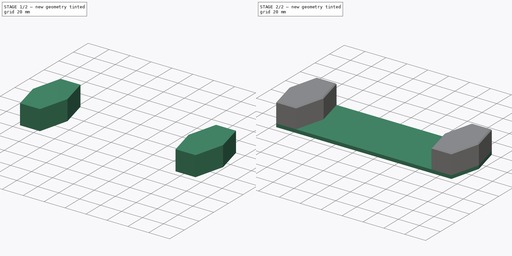
[diagram: build sequence overview — one tinted view per stage of 2, left to right]
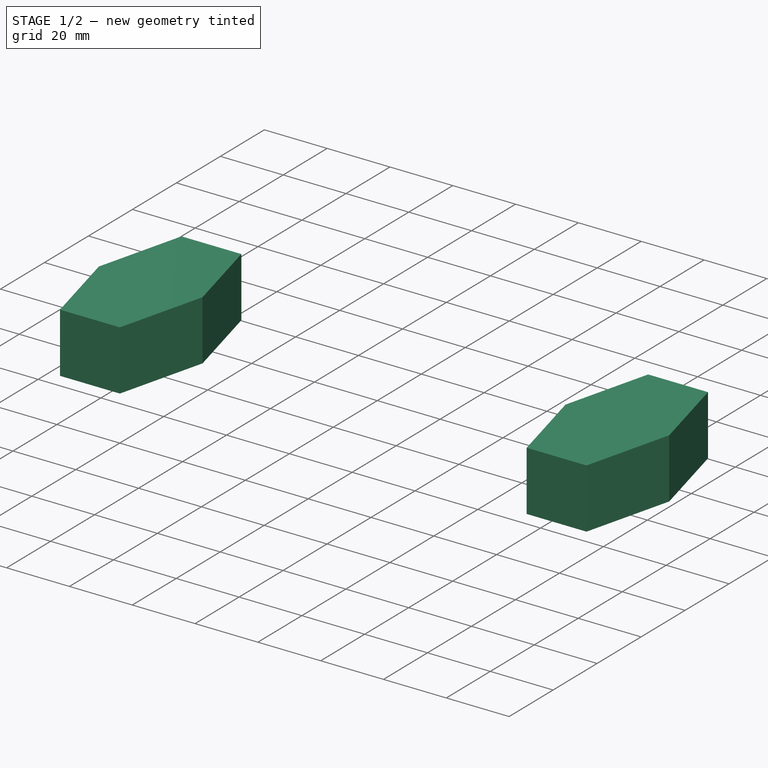
[diagram: stage 1 of 2 — iso view after this stage's code; geometry added in this stage tinted green]
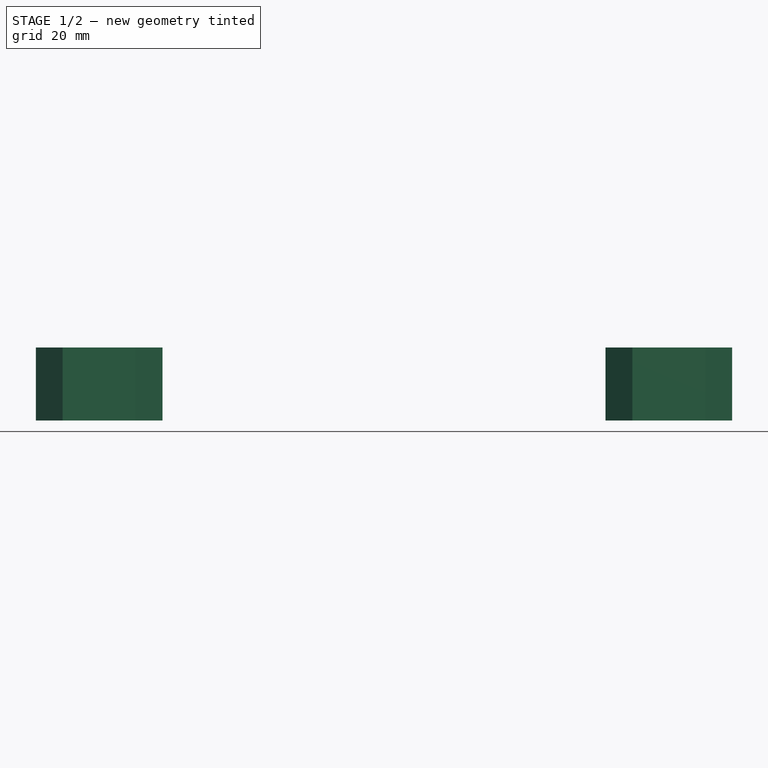
[diagram: stage 1 of 2 — front view after this stage's code; geometry added in this stage tinted green]
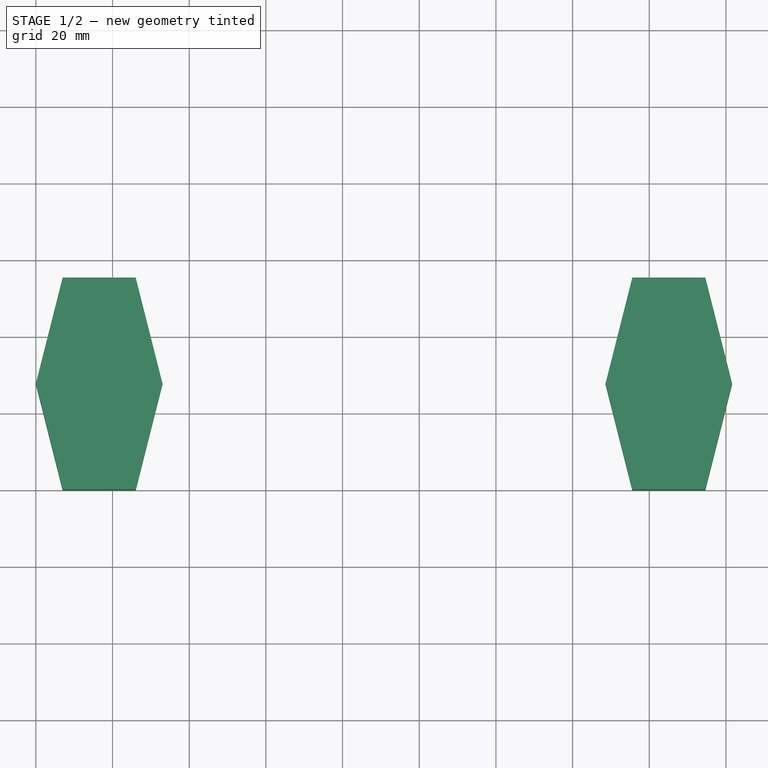
[diagram: stage 1 of 2 — top view after this stage's code; geometry added in this stage tinted green]
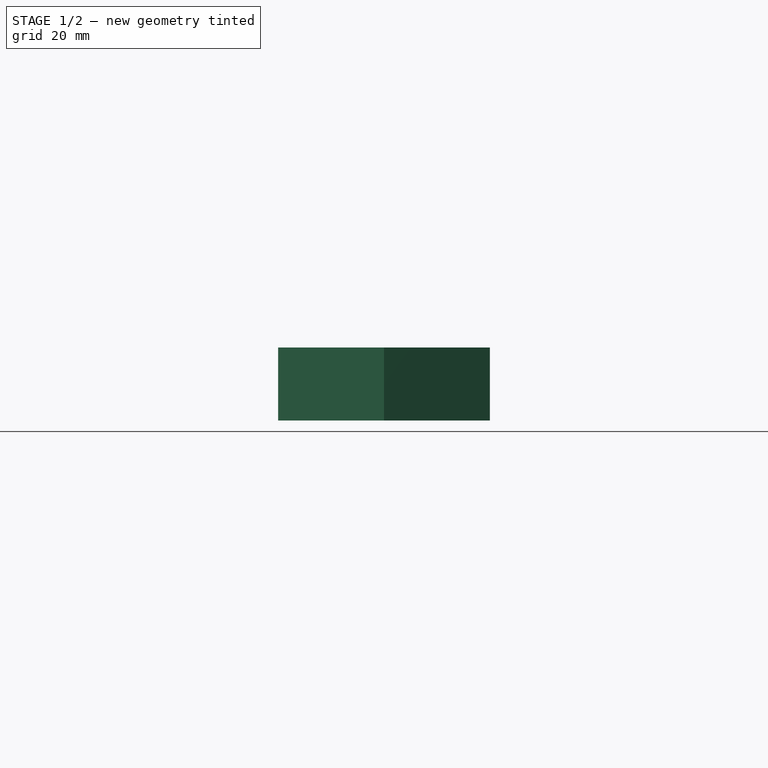
[diagram: stage 1 of 2 — right view after this stage's code; geometry added in this stage tinted green]
FCSTD DOCUMENT  (FreeCAD 0.20R29177 (Git))
Label: Xpad_Bottom
License: All rights reserved
LicenseURL: http://en.wikipedia.org/wiki/All_rights_reserved
objects: Sketcher::SketchObject×3, Part::Extrusion×2, App::Part×1, Part::Fuse×1, Part::Chamfer×1
note: 7 computed .brp shape members not serialized (recipe doc carries the construction recipe); baked Part::Feature solids carry a one-line shape summary decoded from their .brp

FEATURE [App::Part] Part
  Origin = -> Origin
FEATURE [Sketcher::SketchObject] Sketch
  FullyConstrained = true
  sketch-geometry (8):
    g0: LineSegment StartX=6.985 StartY=0 StartZ=0 EndX=174.625 EndY=0 EndZ=0
    g1: LineSegment StartX=174.625 StartY=0 StartZ=0 EndX=181.61 EndY=27.6225 EndZ=0
    g2: LineSegment StartX=181.61 StartY=27.6225 StartZ=0 EndX=174.625 EndY=55.245 EndZ=0
    g3: LineSegment StartX=174.625 StartY=55.245 StartZ=0 EndX=6.985 EndY=55.245 EndZ=0
    g4: LineSegment StartX=6.985 StartY=55.245 StartZ=0 EndX=0 EndY=27.6225 EndZ=0
    g5: LineSegment StartX=0 StartY=27.6225 StartZ=0 EndX=6.985 EndY=0 EndZ=0
    g6: LineSegment StartX=6.985 StartY=55.245 StartZ=0 EndX=6.985 EndY=27.6225 EndZ=0
    g7: LineSegment StartX=6.985 StartY=27.6225 StartZ=0 EndX=6.985 EndY=0 EndZ=0
  constraints (24):
    c: Horizontal(g0)
    c: Coincident(g1,g0)
    c: Coincident(g2,g1)
    c: Horizontal(g3)
    c: Coincident(g4,g3)
    c: Coincident(g5,g4)
    c: Coincident(g5,g0)
    c: Horizontal(g4,g1)
    c: Coincident(g3,g2)
    c: DistanceX(g4,g3) = 6.985
    c: DistanceY(g0,g3) = 55.245
    c: Equal(g2,g4)
    c: Equal(g1,g5)
    c: Coincident(g7,g6)
    c: PointOnObject(g7,g0)
    c: Equal(g7,g6)
    c: Vertical(g6)
    c: Vertical(g7)
    c: Horizontal(g4,g6)
    c: Vertical(g4,g-1)
    c: Horizontal(g0,g-1)
    c: Equal(g5,g4)
    c: Coincident(g6,g3)
    c: DistanceX(g4,g1) = 181.61
FEATURE [Part::Extrusion] Extrude
  Base = -> Sketch
  Dir = (0,0,1)
  DirMode = 2
  FaceMakerClass = Part::FaceMakerBullseye
  LengthFwd = 3.17
  LengthRev = 0
  Solid = true
  Symmetric = false
FEATURE [Sketcher::SketchObject] Sketch001
  ExternalGeometry = -> [Sketch]
  FullyConstrained = true
  MapMode = 5
  Placement = pos=(0,0,3.17) rot=(0,0,1;0rad)
  Support = -> [Extrude]
  sketch-geometry (14):
    g0: LineSegment StartX=6.985 StartY=55.245 StartZ=0 EndX=0 EndY=27.6225 EndZ=0
    g1: LineSegment StartX=0 StartY=27.6225 StartZ=0 EndX=6.985 EndY=0 EndZ=0
    g2: LineSegment StartX=6.985 StartY=55.245 StartZ=0 EndX=26.035 EndY=55.245 EndZ=0
    g3: LineSegment StartX=26.035 StartY=55.245 StartZ=0 EndX=33.02 EndY=27.6225 EndZ=0
    g4: LineSegment StartX=33.02 StartY=27.6225 StartZ=0 EndX=26.035 EndY=0 EndZ=0
    g5: LineSegment StartX=26.035 StartY=0 StartZ=0 EndX=6.985 EndY=0 EndZ=0
    g6: LineSegment StartX=174.625 StartY=55.245 StartZ=0 EndX=155.575 EndY=55.245 EndZ=0
    g7: LineSegment StartX=155.575 StartY=55.245 StartZ=0 EndX=148.59 EndY=27.6225 EndZ=0
    g8: LineSegment StartX=148.59 StartY=27.6225 StartZ=0 EndX=155.575 EndY=0 EndZ=0
    g9: LineSegment StartX=155.575 StartY=0 StartZ=0 EndX=174.625 EndY=0 EndZ=0
    g10: LineSegment StartX=174.625 StartY=0 StartZ=0 EndX=181.61 EndY=27.6225 EndZ=0
    g11: LineSegment StartX=181.61 StartY=27.6225 StartZ=0 EndX=174.625 EndY=55.245 EndZ=0
    g12: LineSegment StartX=26.035 StartY=55.245 StartZ=0 EndX=26.035 EndY=27.6225 EndZ=0
    g13: LineSegment StartX=26.035 StartY=27.6225 StartZ=0 EndX=26.035 EndY=0 EndZ=0
  constraints (38):
    c: Coincident(g1,g0)
    c: Coincident(g2,g0)
    c: Horizontal(g2)
    c: Coincident(g3,g2)
    c: Coincident(g4,g3)
    c: Coincident(g5,g4)
    c: Coincident(g5,g1)
    c: Coincident(g7,g6)
    c: Coincident(g8,g7)
    c: Coincident(g9,g8)
    c: Coincident(g10,g9)
    c: Horizontal(g6)
    c: Horizontal(g9)
    c: Horizontal(g5)
    c: Equal(g5,g2)
    c: Equal(g6,g9)
    c: Equal(g2,g6)
    c: Vertical(g12)
    c: Coincident(g13,g12)
    c: Vertical(g13)
    c: Coincident(g2,g12)
    c: Coincident(g4,g13)
    c: Coincident(g6,g11)
    c: Equal(g12,g13)
    c: Coincident(g11,g10)
    c: Horizontal(g7,g10)
    c: Horizontal(g0,g3)
    c: Horizontal(g12,g3)
    c: Equal(g3,g0)
    c: Equal(g3,g7)
    c: Equal(g11,g7)
    c: Horizontal(g4,g8)
    c: Coincident(g10,g-6)
    c: Coincident(g-3,g0)
    c: Coincident(g-5,g1)
    c: Horizontal(g2,g6)
    c: Equal(g8,g7)
    c: Distance(g0,g2) = 19.05
FEATURE [Part::Extrusion] Extrude001
  Base = -> Sketch001
  Dir = (0,0,1)
  DirMode = 2
  FaceMakerClass = Part::FaceMakerBullseye
  LengthFwd = 19.05
  LengthRev = 0
  Solid = true
  Symmetric = false
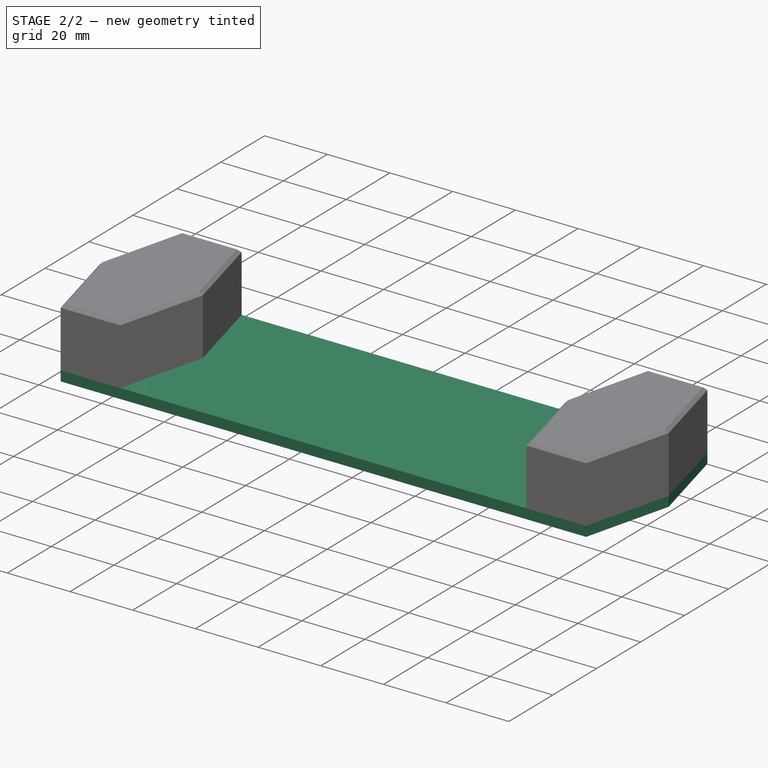
[diagram: stage 2 of 2 — iso view after this stage's code; geometry added in this stage tinted green]
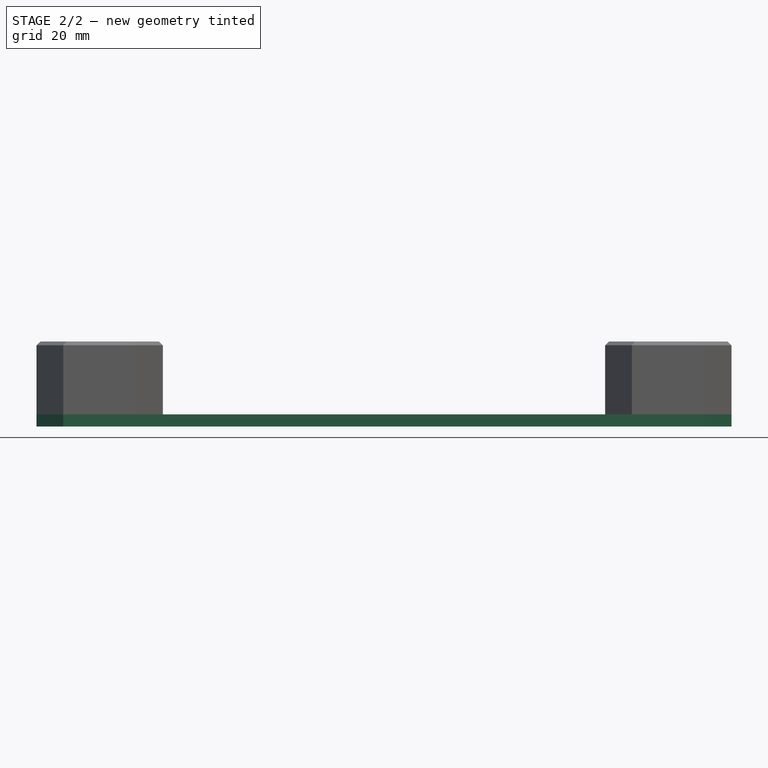
[diagram: stage 2 of 2 — front view after this stage's code; geometry added in this stage tinted green]
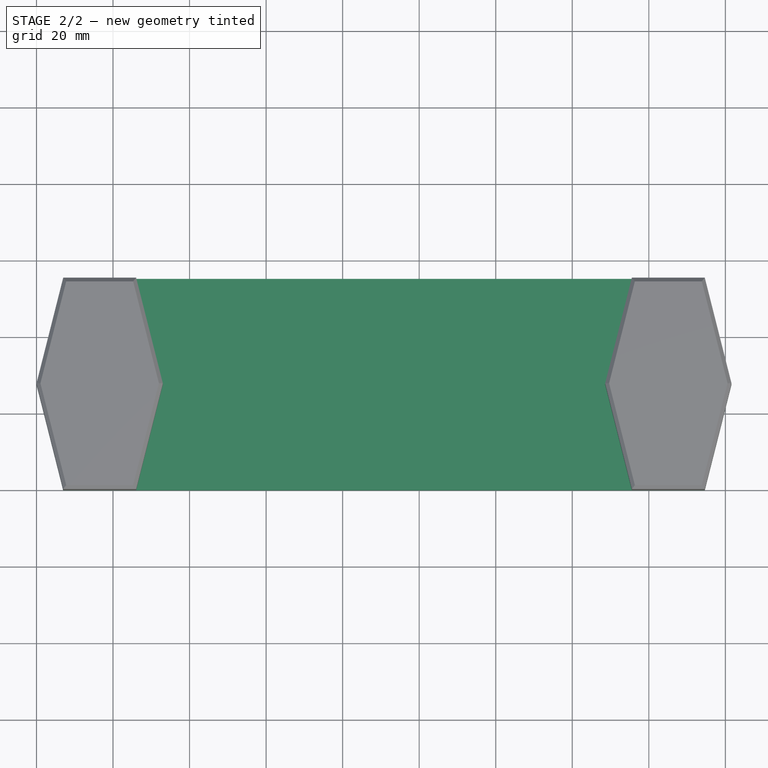
[diagram: stage 2 of 2 — top view after this stage's code; geometry added in this stage tinted green]
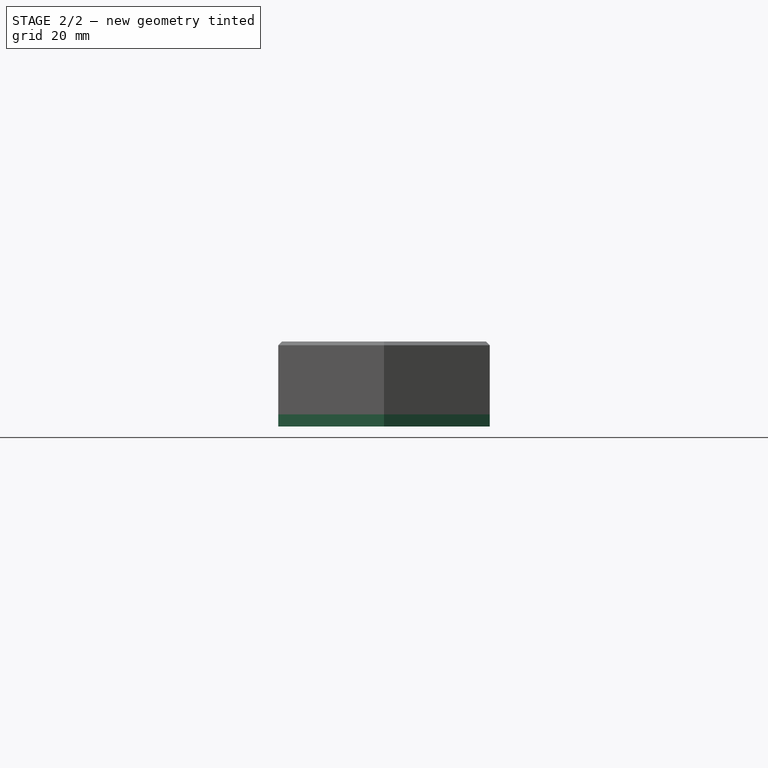
[diagram: stage 2 of 2 — right view after this stage's code; geometry added in this stage tinted green]
FEATURE [Part::Fuse] Fusion
  Base = -> Extrude
  Tool = -> Extrude001
FEATURE [Part::Chamfer] Chamfer
  Base = -> Fusion
  Edges = 12 edges r=1: [Edge18,Edge26,Edge30,Edge34,Edge38,Edge39,Edge40,Edge41,Edge45,Edge46,Edge47,Edge48]
FEATURE [Sketcher::SketchObject] Sketch002
  ExternalGeometry = -> [Sketch]
  FullyConstrained = false
  sketch-geometry (3):
    g0: Circle CenterX=40.132 CenterY=27.6225 CenterZ=0 NormalX=0 NormalY=0 NormalZ=1 AngleXU=0 Radius=1.27
    g1: Circle CenterX=147.32 CenterY=27.6225 CenterZ=0 NormalX=0 NormalY=0 NormalZ=1 AngleXU=0 Radius=1.27
    g2: Circle CenterX=78.8343 CenterY=20.9972 CenterZ=0 NormalX=0 NormalY=0 NormalZ=1 AngleXU=0 Radius=1.27
  constraints (7):
    c: Equal(g0,g2)
    c: Equal(g1,g2)
    c: Diameter(g2) = 2.54
    c: Horizontal(g-3,g0)
    c: Horizontal(g0,g1)
    c: Distance(g0,g1) = 107.188
    c: Distance(g-3,g0) = 40.132
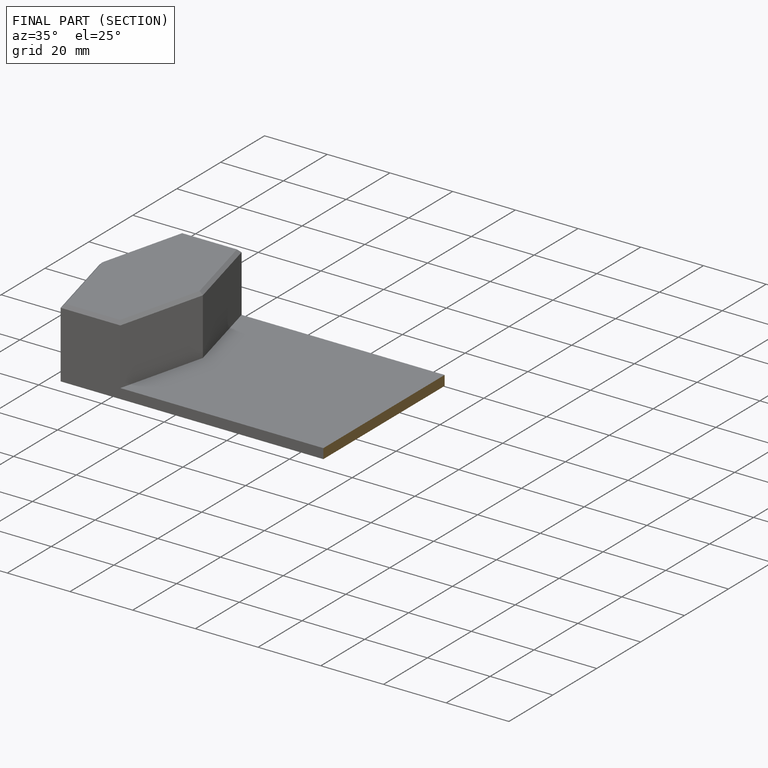
[diagram: finished part — half-section view (interior)]
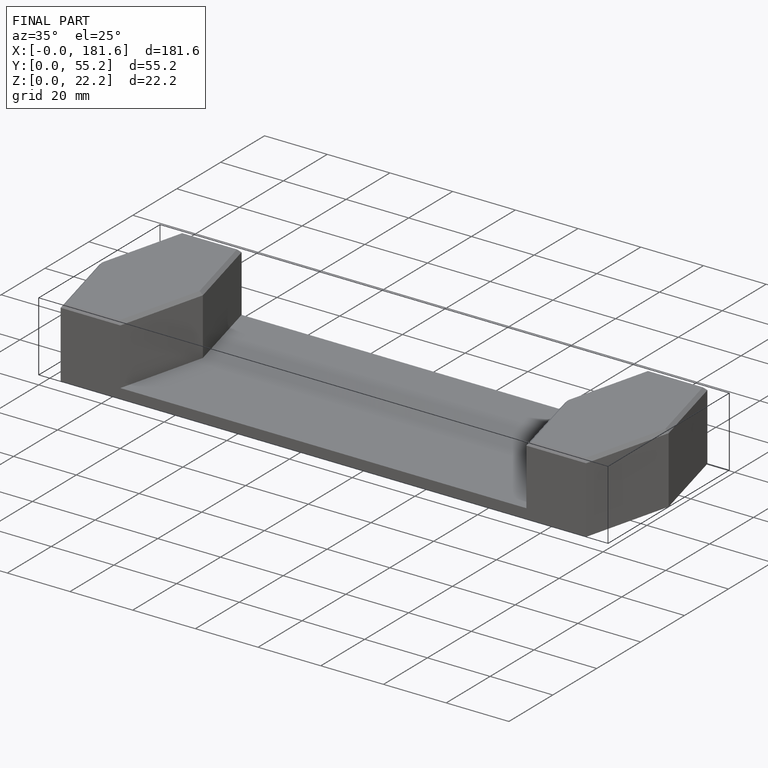
[diagram: finished part — iso view with bounding-box wireframe]
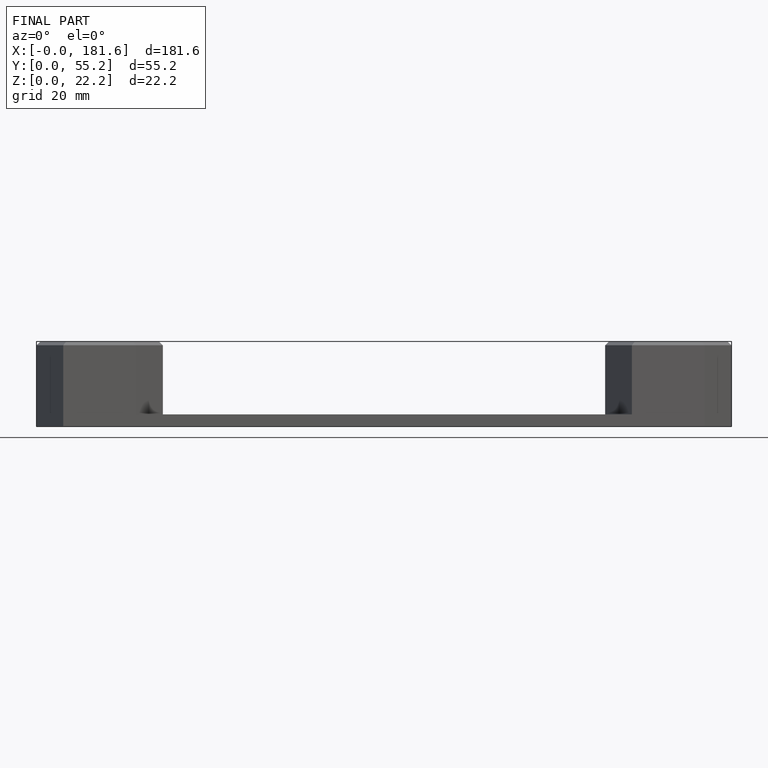
[diagram: finished part — front view with bounding-box wireframe]
